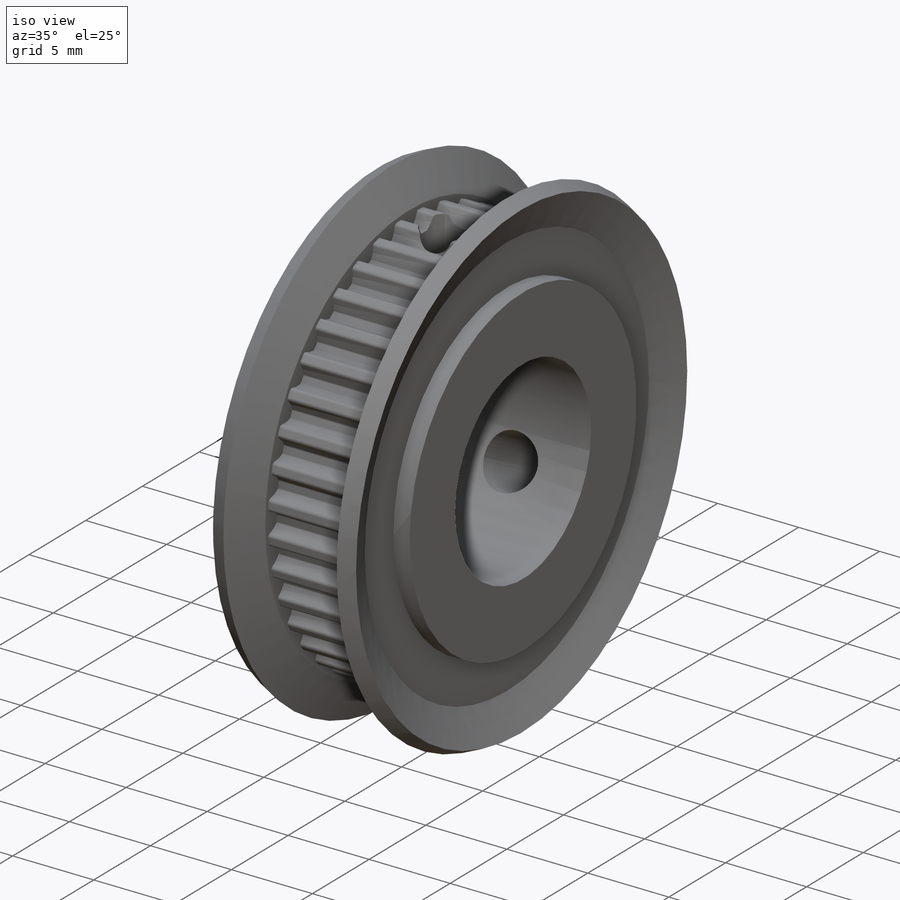
[diagram: iso view]
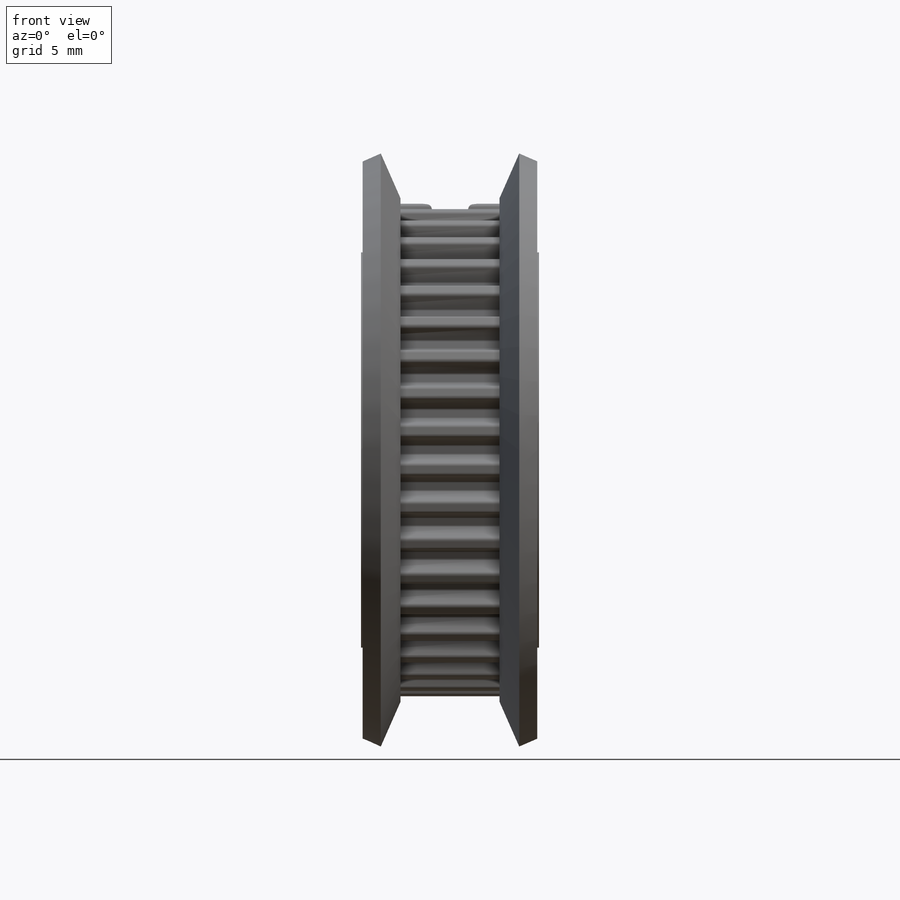
[diagram: front view]
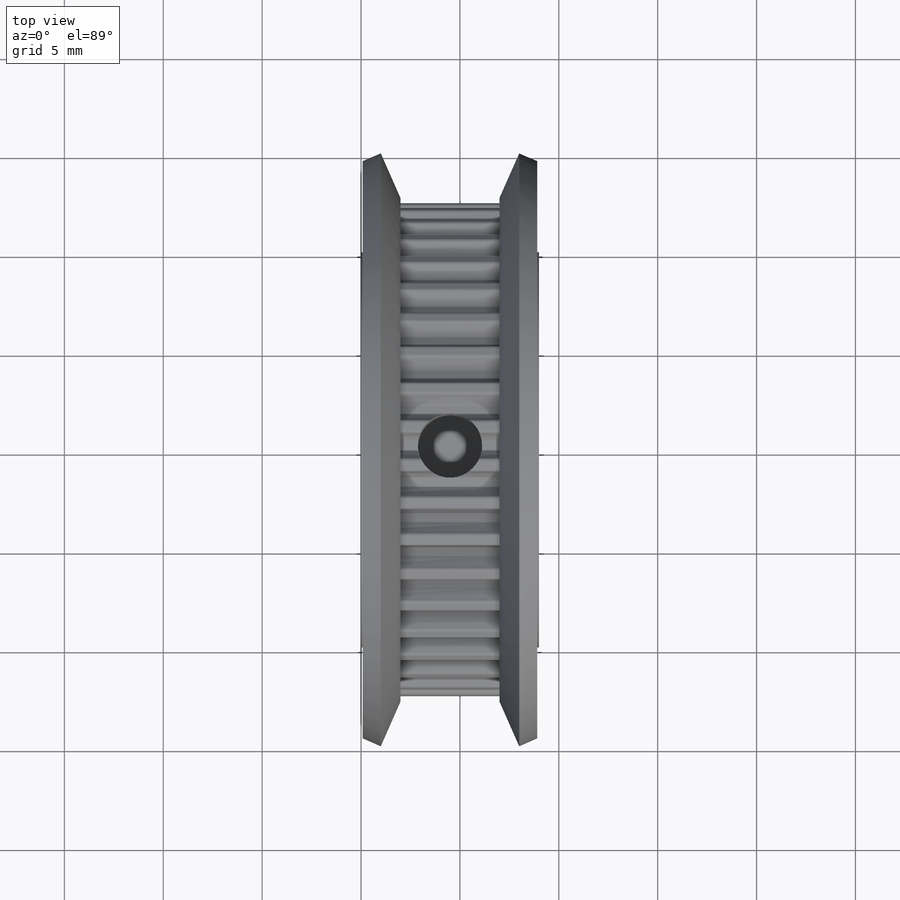
[diagram: top view]
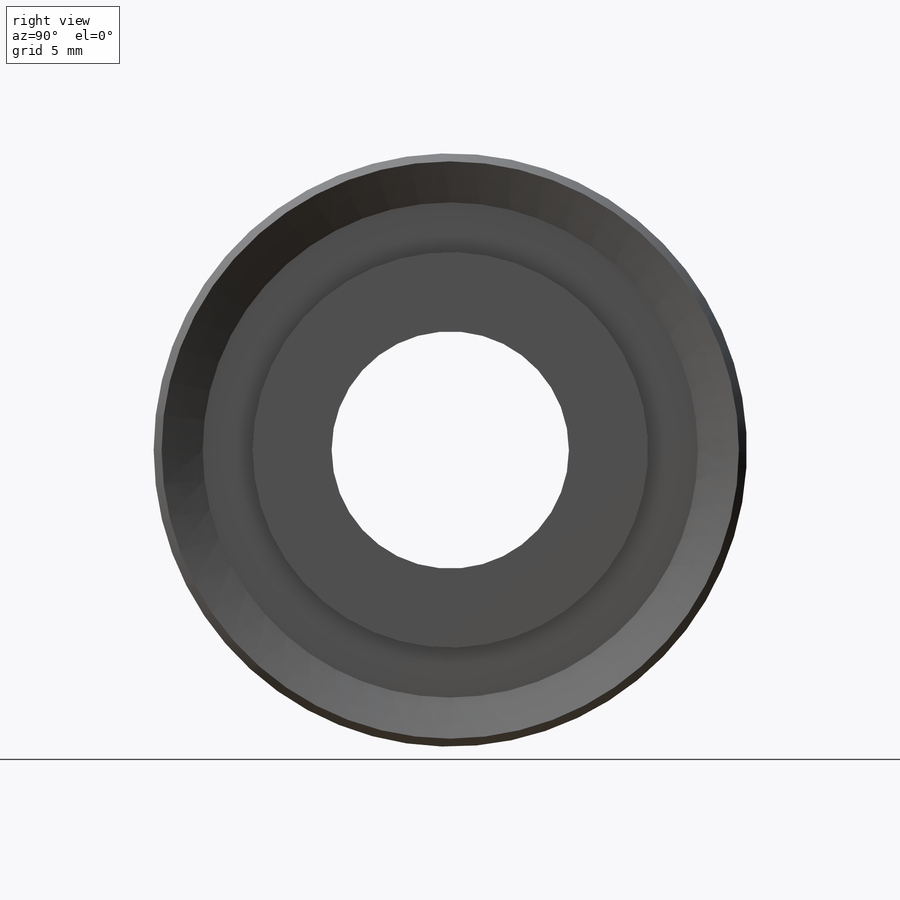
[diagram: right view]
SOLIDWORKS PART (.sldprt)
format: sldprt  version: not decoded by parser v0  size: 1,015,808 bytes
history: native  units: mm
features: plane x44, sketch x44, cut_extrude x40, cut_revolve x3, material x1, revolve x1 (+16 scaffold rows collapsed)
feature tree (149):
  scaffold x16  (default folders/planes/origin — collapsed)
  material  "Material <not specified>"
  plane  "Plane1"
  sketch  "Sketch1"
  revolve  "Revolve1"  Angle=360deg
  plane  "Plane2"
  sketch  "Sketch2"
  cut_revolve  "Cut-Revolve1"  Angle=360deg
  plane  "Plane3"
  sketch  "Sketch3"
  cut_extrude  "Cut-Extrude1"  Depth=5mm
  plane  "Plane4"
  sketch  "Sketch4"
  cut_extrude  "Cut-Extrude2"  Depth=5mm
  plane  "Plane5"
  sketch  "Sketch5"
  cut_extrude  "Cut-Extrude3"  Depth=5mm
  plane  "Plane6"
  sketch  "Sketch6"
  cut_extrude  "Cut-Extrude4"  Depth=5mm
  plane  "Plane7"
  sketch  "Sketch7"
  cut_extrude  "Cut-Extrude5"  Depth=5mm
  plane  "Plane8"
  sketch  "Sketch8"
  cut_extrude  "Cut-Extrude6"  Depth=5mm
  plane  "Plane9"
  sketch  "Sketch9"
  cut_extrude  "Cut-Extrude7"  Depth=5mm
  plane  "Plane10"
  sketch  "Sketch10"
  cut_extrude  "Cut-Extrude8"  Depth=5mm
  plane  "Plane11"
  sketch  "Sketch11"
  cut_extrude  "Cut-Extrude9"  Depth=5mm
  plane  "Plane12"
  sketch  "Sketch12"
  cut_extrude  "Cut-Extrude10"  Depth=5mm
  plane  "Plane13"
  sketch  "Sketch13"
  cut_extrude  "Cut-Extrude11"  Depth=5mm
  plane  "Plane14"
  sketch  "Sketch14"
  cut_extrude  "Cut-Extrude12"  Depth=5mm
  plane  "Plane15"
  sketch  "Sketch15"
  cut_extrude  "Cut-Extrude13"  Depth=5mm
  plane  "Plane16"
  sketch  "Sketch16"
  cut_extrude  "Cut-Extrude14"  Depth=5mm
  plane  "Plane17"
  sketch  "Sketch17"
  cut_extrude  "Cut-Extrude15"  Depth=5mm
  plane  "Plane18"
  sketch  "Sketch18"
  cut_extrude  "Cut-Extrude16"  Depth=5mm
  plane  "Plane19"
  sketch  "Sketch19"
  cut_extrude  "Cut-Extrude17"  Depth=5mm
  plane  "Plane20"
  sketch  "Sketch20"
  cut_extrude  "Cut-Extrude18"  Depth=5mm
  plane  "Plane21"
  sketch  "Sketch21"
  cut_extrude  "Cut-Extrude19"  Depth=5mm
  plane  "Plane22"
  sketch  "Sketch22"
  cut_extrude  "Cut-Extrude20"  Depth=5mm
  plane  "Plane23"
  sketch  "Sketch23"
  cut_extrude  "Cut-Extrude21"  Depth=5mm
  plane  "Plane24"
  sketch  "Sketch24"
  cut_extrude  "Cut-Extrude22"  Depth=5mm
  plane  "Plane25"
  sketch  "Sketch25"
  cut_extrude  "Cut-Extrude23"  Depth=5mm
  plane  "Plane26"
  sketch  "Sketch26"
  cut_extrude  "Cut-Extrude24"  Depth=5mm
  plane  "Plane27"
  sketch  "Sketch27"
  cut_extrude  "Cut-Extrude25"  Depth=5mm
  plane  "Plane28"
  sketch  "Sketch28"
  cut_extrude  "Cut-Extrude26"  Depth=5mm
  plane  "Plane29"
  sketch  "Sketch29"
  cut_extrude  "Cut-Extrude27"  Depth=5mm
  plane  "Plane30"
  sketch  "Sketch30"
  cut_extrude  "Cut-Extrude28"  Depth=5mm
  plane  "Plane31"
  sketch  "Sketch31"
  cut_extrude  "Cut-Extrude29"  Depth=5mm
  plane  "Plane32"
  sketch  "Sketch32"
  cut_extrude  "Cut-Extrude30"  Depth=5mm
  plane  "Plane33"
  sketch  "Sketch33"
  cut_extrude  "Cut-Extrude31"  Depth=5mm
  plane  "Plane34"
  sketch  "Sketch34"
  cut_extrude  "Cut-Extrude32"  Depth=5mm
  plane  "Plane35"
  sketch  "Sketch35"
  cut_extrude  "Cut-Extrude33"  Depth=5mm
  plane  "Plane36"
  sketch  "Sketch36"
  cut_extrude  "Cut-Extrude34"  Depth=5mm
  plane  "Plane37"
  sketch  "Sketch37"
  cut_extrude  "Cut-Extrude35"  Depth=5mm
  plane  "Plane38"
  sketch  "Sketch38"
  cut_extrude  "Cut-Extrude36"  Depth=5mm
  plane  "Plane39"
  sketch  "Sketch39"
  cut_extrude  "Cut-Extrude37"  Depth=5mm
  plane  "Plane40"
  sketch  "Sketch40"
  cut_extrude  "Cut-Extrude38"  Depth=5mm
  plane  "Plane41"
  sketch  "Sketch41"
  cut_extrude  "Cut-Extrude39"  Depth=5mm
  plane  "Plane42"
  sketch  "Sketch42"
  cut_extrude  "Cut-Extrude40"  Depth=5mm
  plane  "Plane43"
  sketch  "Sketch43"
  cut_revolve  "Cut-Revolve2"  Angle=360deg
  plane  "Plane44"
  sketch  "Sketch44"
  cut_revolve  "Cut-Revolve3"  Angle=360deg
decode coverage: 44 of 88 modeling features carry decoded parameters
note: suppression state not decoded; provenance and decode notes live in map.json
